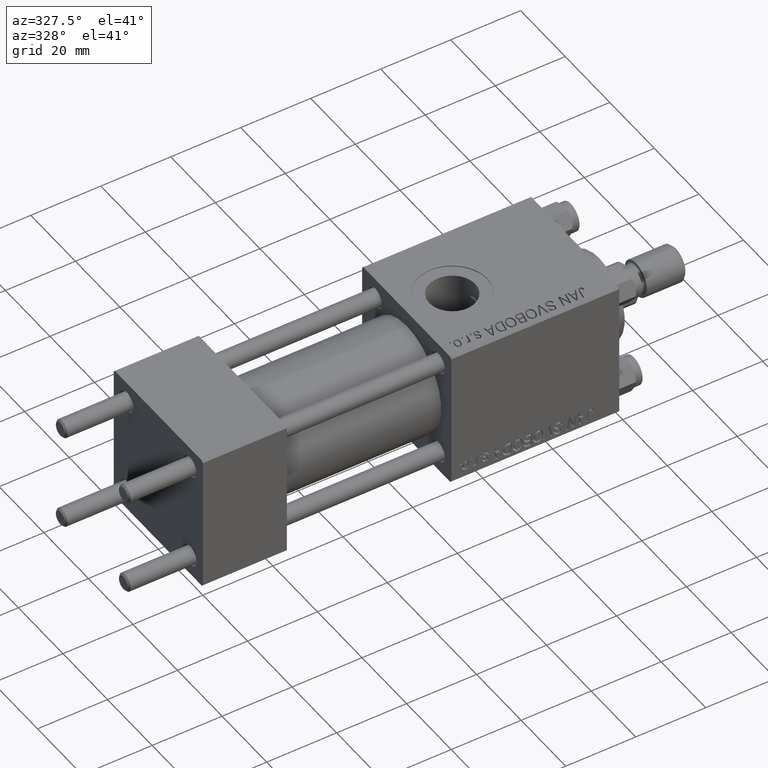
[diagram: clean part render]
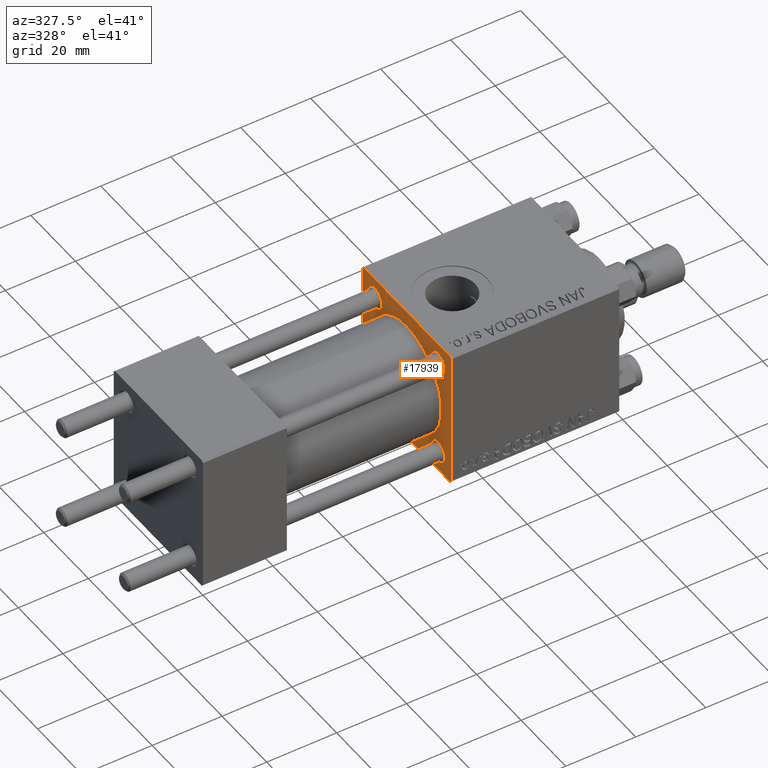
[diagram: same view with one face highlighted and labeled with its STEP entity id]
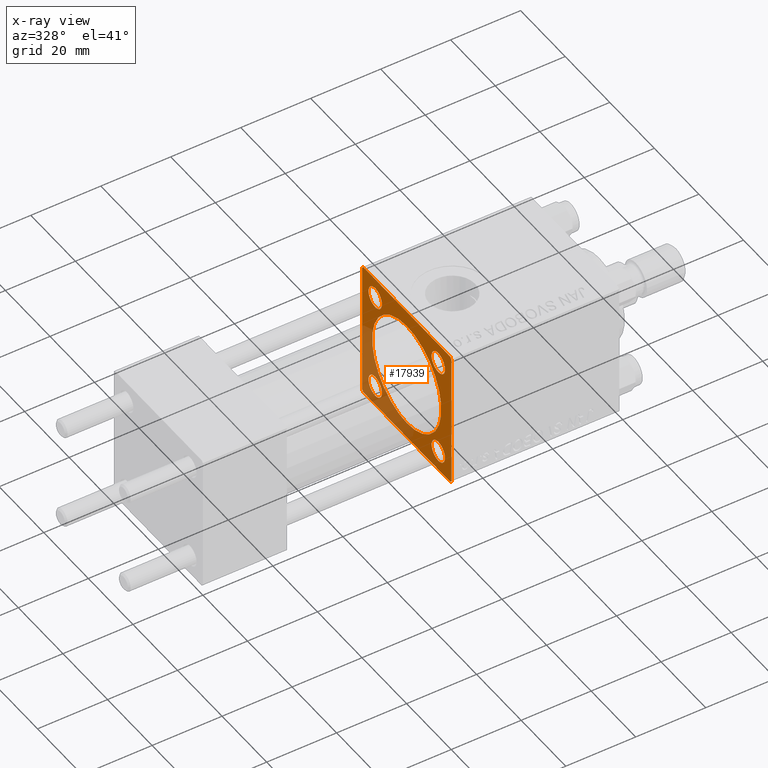
[diagram: x-ray of the same camera — body ghosted, the highlighted face saturated]
A machine part, auxiliary view. The second image highlights one B-rep face of the part: STEP entity #17939.
The next image is the same camera in x-ray: the body ghosted, the highlighted face saturated — about 28% of this face is hidden behind the body in this view.
In plain terms, the highlighted planar face has unit normal (-1, 0, 0).
Its self-contained STEP definition (entity closure, byte-faithful):
#129 = VERTEX_POINT ( 'NONE', #15052 ) ;
#166 = EDGE_CURVE ( 'NONE', #2318, #13542, #22949, .T. ) ;
#341 = CARTESIAN_POINT ( 'NONE',  ( 71.00000000000001421, -19.75000000000028066, -19.74999999999973355 ) ) ;
#757 = CARTESIAN_POINT ( 'NONE',  ( 71.00000000000001421, 0.000000000000000000, 0.000000000000000000 ) ) ;
#1073 = EDGE_CURVE ( 'NONE', #16565, #28310, #16279, .T. ) ;
#1435 = CARTESIAN_POINT ( 'NONE',  ( 71.00000000000001421, -14.15000000000000036, -11.15000000000002522 ) ) ;
#2318 = VERTEX_POINT ( 'NONE', #46580 ) ;
#2628 = CIRCLE ( 'NONE', #9951, 2.999999999999976463 ) ;
#2677 = ORIENTED_EDGE ( 'NONE', *, *, #17128, .T. ) ;
#3322 = AXIS2_PLACEMENT_3D ( 'NONE', #12556, #38813, #27613 ) ;
#3884 = EDGE_CURVE ( 'NONE', #26812, #12366, #47269, .T. ) ;
#4024 = CARTESIAN_POINT ( 'NONE',  ( 71.00000000000001421, -20.00000000000000355, 19.99999999999999645 ) ) ;
#4340 = DIRECTION ( 'NONE',  ( 0.000000000000000000, 0.000000000000000000, 1.000000000000000000 ) ) ;
#4429 = CIRCLE ( 'NONE', #23942, 2.999999999999976463 ) ;
#4444 = AXIS2_PLACEMENT_3D ( 'NONE', #16089, #31658, #12265 ) ;
#4796 = DIRECTION ( 'NONE',  ( 1.000000000000000000, 0.000000000000000000, 0.000000000000000000 ) ) ;
#4878 = EDGE_CURVE ( 'NONE', #2318, #6711, #42767, .T. ) ;
#5298 = DIRECTION ( 'NONE',  ( 0.000000000000000000, 0.000000000000000000, 1.000000000000000000 ) ) ;
#5326 = EDGE_CURVE ( 'NONE', #13655, #12682, #31072, .T. ) ;
#5335 = AXIS2_PLACEMENT_3D ( 'NONE', #33842, #49364, #6818 ) ;
#5569 = DIRECTION ( 'NONE',  ( -0.000000000000000000, -0.7071067811865474617, -0.7071067811865474617 ) ) ;
#5817 = CARTESIAN_POINT ( 'NONE',  ( 71.00000000000001421, 14.15000000000000036, 11.14999999999999858 ) ) ;
#6427 = ORIENTED_EDGE ( 'NONE', *, *, #24322, .T. ) ;
#6711 = VERTEX_POINT ( 'NONE', #20411 ) ;
#6818 = DIRECTION ( 'NONE',  ( 0.000000000000000000, 0.000000000000000000, 1.000000000000000000 ) ) ;
#6892 = EDGE_CURVE ( 'NONE', #12682, #13655, #2628, .T. ) ;
#7432 = VERTEX_POINT ( 'NONE', #44849 ) ;
#8239 = VECTOR ( 'NONE', #22906, 1000.000000000000000 ) ;
#8411 = DIRECTION ( 'NONE',  ( 1.000000000000000000, 0.000000000000000000, 0.000000000000000000 ) ) ;
#9009 = ORIENTED_EDGE ( 'NONE', *, *, #4878, .F. ) ;
#9019 = EDGE_CURVE ( 'NONE', #49017, #49293, #10715, .T. ) ;
#9041 = CARTESIAN_POINT ( 'NONE',  ( 71.00000000000001421, -14.15000000000000036, -14.15000000000000036 ) ) ;
#9073 = AXIS2_PLACEMENT_3D ( 'NONE', #9041, #13864, #29426 ) ;
#9951 = AXIS2_PLACEMENT_3D ( 'NONE', #40208, #4796, #5298 ) ;
#10270 = CARTESIAN_POINT ( 'NONE',  ( 71.00000000000001421, 1.898202538678397557E-15, -15.50000000000000000 ) ) ;
#10628 = LINE ( 'NONE', #33083, #12955 ) ;
#10715 = CIRCLE ( 'NONE', #45694, 3.000000000000004441 ) ;
#11426 = EDGE_LOOP ( 'NONE', ( #13606, #39799 ) ) ;
#11718 = CARTESIAN_POINT ( 'NONE',  ( 71.00000000000001421, 0.000000000000000000, 15.50000000000000000 ) ) ;
#11802 = CIRCLE ( 'NONE', #4444, 15.50000000000000000 ) ;
#12265 = DIRECTION ( 'NONE',  ( 0.000000000000000000, 0.000000000000000000, -1.000000000000000000 ) ) ;
#12366 = VERTEX_POINT ( 'NONE', #5817 ) ;
#12556 = CARTESIAN_POINT ( 'NONE',  ( 71.00000000000001421, -14.15000000000000036, 14.15000000000000036 ) ) ;
#12682 = VERTEX_POINT ( 'NONE', #31792 ) ;
#12708 = CARTESIAN_POINT ( 'NONE',  ( 71.00000000000001421, 19.99999999999999645, 19.49999999999998579 ) ) ;
#12955 = VECTOR ( 'NONE', #17779, 999.9999999999998863 ) ;
#13472 = DIRECTION ( 'NONE',  ( 0.000000000000000000, 0.000000000000000000, 1.000000000000000000 ) ) ;
#13542 = VERTEX_POINT ( 'NONE', #43742 ) ;
#13606 = ORIENTED_EDGE ( 'NONE', *, *, #9019, .T. ) ;
#13655 = VERTEX_POINT ( 'NONE', #1435 ) ;
#13805 = VECTOR ( 'NONE', #22706, 1000.000000000000114 ) ;
#13864 = DIRECTION ( 'NONE',  ( 1.000000000000000000, 0.000000000000000000, 0.000000000000000000 ) ) ;
#14134 = CARTESIAN_POINT ( 'NONE',  ( 71.00000000000001421, 14.15000000000000036, -11.15000000000002522 ) ) ;
#14648 = AXIS2_PLACEMENT_3D ( 'NONE', #757, #8411, #36187 ) ;
#15052 = CARTESIAN_POINT ( 'NONE',  ( 71.00000000000001421, 14.15000000000000036, -17.14999999999997726 ) ) ;
#16089 = CARTESIAN_POINT ( 'NONE',  ( 71.00000000000001421, 0.000000000000000000, 0.000000000000000000 ) ) ;
#16279 = CIRCLE ( 'NONE', #14648, 15.50000000000000000 ) ;
#16565 = VERTEX_POINT ( 'NONE', #11718 ) ;
#16729 = FACE_BOUND ( 'NONE', #37948, .T. ) ;
#17035 = ORIENTED_EDGE ( 'NONE', *, *, #49942, .T. ) ;
#17086 = DIRECTION ( 'NONE',  ( 0.000000000000000000, -1.000000000000000000, -8.673617379884035472E-17 ) ) ;
#17128 = EDGE_CURVE ( 'NONE', #28310, #16565, #11802, .T. ) ;
#17718 = DIRECTION ( 'NONE',  ( 0.000000000000000000, 0.000000000000000000, 1.000000000000000000 ) ) ;
#17779 = DIRECTION ( 'NONE',  ( 0.000000000000000000, 0.7071067811865574537, -0.7071067811865376918 ) ) ;
#17939 = ADVANCED_FACE ( 'NONE', ( #43730, #43972, #36343, #39911, #16729, #40908 ), #32283, .T. ) ;
#18795 = CIRCLE ( 'NONE', #3322, 3.000000000000004441 ) ;
#19898 = EDGE_LOOP ( 'NONE', ( #23755, #29986 ) ) ;
#20411 = CARTESIAN_POINT ( 'NONE',  ( 71.00000000000001421, -20.00000000000000000, -19.50000000000001066 ) ) ;
#20471 = DIRECTION ( 'NONE',  ( 0.000000000000000000, -0.7071067811865376918, 0.7071067811865574537 ) ) ;
#21148 = EDGE_CURVE ( 'NONE', #26568, #7432, #26579, .T. ) ;
#22496 = EDGE_CURVE ( 'NONE', #38799, #13542, #26021, .T. ) ;
#22706 = DIRECTION ( 'NONE',  ( -0.000000000000000000, 0.7071067811865573427, 0.7071067811865376918 ) ) ;
#22906 = DIRECTION ( 'NONE',  ( 0.000000000000000000, 8.673617379884036705E-17, -1.000000000000000000 ) ) ;
#22949 = LINE ( 'NONE', #46616, #13805 ) ;
#23238 = DIRECTION ( 'NONE',  ( 0.000000000000000000, -1.000000000000000000, 0.000000000000000000 ) ) ;
#23512 = ORIENTED_EDGE ( 'NONE', *, *, #26371, .T. ) ;
#23755 = ORIENTED_EDGE ( 'NONE', *, *, #5326, .T. ) ;
#23942 = AXIS2_PLACEMENT_3D ( 'NONE', #27797, #39247, #4340 ) ;
#23987 = EDGE_LOOP ( 'NONE', ( #32364, #6427 ) ) ;
#24199 = CARTESIAN_POINT ( 'NONE',  ( 71.00000000000001421, -14.15000000000000036, 17.15000000000000568 ) ) ;
#24322 = EDGE_CURVE ( 'NONE', #129, #37381, #4429, .T. ) ;
#24963 = LINE ( 'NONE', #37176, #34373 ) ;
#25600 = ORIENTED_EDGE ( 'NONE', *, *, #3884, .T. ) ;
#26021 = LINE ( 'NONE', #41541, #36126 ) ;
#26145 = ORIENTED_EDGE ( 'NONE', *, *, #22496, .F. ) ;
#26371 = EDGE_CURVE ( 'NONE', #7432, #6711, #30709, .T. ) ;
#26462 = CARTESIAN_POINT ( 'NONE',  ( 71.00000000000001421, 19.49999999999996803, 20.00000000000000000 ) ) ;
#26568 = VERTEX_POINT ( 'NONE', #33202 ) ;
#26579 = LINE ( 'NONE', #46157, #32105 ) ;
#26641 = VECTOR ( 'NONE', #40037, 1000.000000000000000 ) ;
#26812 = VERTEX_POINT ( 'NONE', #40519 ) ;
#26857 = EDGE_CURVE ( 'NONE', #12366, #26812, #32200, .T. ) ;
#27613 = DIRECTION ( 'NONE',  ( 0.000000000000000000, 0.000000000000000000, 1.000000000000000000 ) ) ;
#27659 = ORIENTED_EDGE ( 'NONE', *, *, #21148, .T. ) ;
#27797 = CARTESIAN_POINT ( 'NONE',  ( 71.00000000000001421, 14.15000000000000036, -14.15000000000000036 ) ) ;
#28310 = VERTEX_POINT ( 'NONE', #10270 ) ;
#28326 = CARTESIAN_POINT ( 'NONE',  ( 71.00000000000001421, 19.99999999999999645, 20.00000000000000000 ) ) ;
#29426 = DIRECTION ( 'NONE',  ( 0.000000000000000000, 0.000000000000000000, 1.000000000000000000 ) ) ;
#29986 = ORIENTED_EDGE ( 'NONE', *, *, #6892, .T. ) ;
#30709 = LINE ( 'NONE', #341, #40291 ) ;
#31072 = CIRCLE ( 'NONE', #9073, 2.999999999999976463 ) ;
#31145 = EDGE_CURVE ( 'NONE', #48031, #48080, #44354, .T. ) ;
#31246 = ORIENTED_EDGE ( 'NONE', *, *, #41131, .T. ) ;
#31658 = DIRECTION ( 'NONE',  ( 1.000000000000000000, 0.000000000000000000, 0.000000000000000000 ) ) ;
#31792 = CARTESIAN_POINT ( 'NONE',  ( 71.00000000000001421, -14.15000000000000036, -17.14999999999997726 ) ) ;
#31977 = CARTESIAN_POINT ( 'NONE',  ( 71.00000000000001421, -14.15000000000000036, 14.15000000000000036 ) ) ;
#32037 = CARTESIAN_POINT ( 'NONE',  ( 71.00000000000001421, 0.000000000000000000, 0.000000000000000000 ) ) ;
#32105 = VECTOR ( 'NONE', #23238, 1000.000000000000000 ) ;
#32200 = CIRCLE ( 'NONE', #5335, 3.000000000000000888 ) ;
#32283 = PLANE ( 'NONE',  #42756 ) ;
#32313 = EDGE_LOOP ( 'NONE', ( #25600, #35033 ) ) ;
#32364 = ORIENTED_EDGE ( 'NONE', *, *, #39089, .T. ) ;
#33083 = CARTESIAN_POINT ( 'NONE',  ( 71.00000000000001421, 19.74999999999971578, 19.75000000000026290 ) ) ;
#33116 = DIRECTION ( 'NONE',  ( 1.000000000000000000, 0.000000000000000000, 0.000000000000000000 ) ) ;
#33202 = CARTESIAN_POINT ( 'NONE',  ( 71.00000000000001421, 19.49999999999999645, -20.00000000000000000 ) ) ;
#33279 = CIRCLE ( 'NONE', #49530, 2.999999999999976463 ) ;
#33842 = CARTESIAN_POINT ( 'NONE',  ( 71.00000000000001421, 14.15000000000000036, 14.15000000000000036 ) ) ;
#34071 = EDGE_LOOP ( 'NONE', ( #27659, #23512, #9009, #49506, #26145, #31246, #35534, #17035 ) ) ;
#34373 = VECTOR ( 'NONE', #5569, 1000.000000000000114 ) ;
#34858 = CARTESIAN_POINT ( 'NONE',  ( 71.00000000000001421, -14.15000000000000036, 11.14999999999999858 ) ) ;
#35033 = ORIENTED_EDGE ( 'NONE', *, *, #26857, .T. ) ;
#35534 = ORIENTED_EDGE ( 'NONE', *, *, #31145, .T. ) ;
#36126 = VECTOR ( 'NONE', #17086, 1000.000000000000000 ) ;
#36187 = DIRECTION ( 'NONE',  ( 0.000000000000000000, 0.000000000000000000, -1.000000000000000000 ) ) ;
#36343 = FACE_BOUND ( 'NONE', #23987, .T. ) ;
#36837 = DIRECTION ( 'NONE',  ( -1.000000000000000000, 0.000000000000000000, -0.000000000000000000 ) ) ;
#36925 = CARTESIAN_POINT ( 'NONE',  ( 71.00000000000001421, 14.15000000000000036, 14.15000000000000036 ) ) ;
#37176 = CARTESIAN_POINT ( 'NONE',  ( 71.00000000000001421, 19.74999999999999645, -19.74999999999999645 ) ) ;
#37381 = VERTEX_POINT ( 'NONE', #14134 ) ;
#37527 = AXIS2_PLACEMENT_3D ( 'NONE', #36925, #33116, #13472 ) ;
#37948 = EDGE_LOOP ( 'NONE', ( #49515, #2677 ) ) ;
#38799 = VERTEX_POINT ( 'NONE', #26462 ) ;
#38813 = DIRECTION ( 'NONE',  ( 1.000000000000000000, 0.000000000000000000, 0.000000000000000000 ) ) ;
#39089 = EDGE_CURVE ( 'NONE', #37381, #129, #33279, .T. ) ;
#39247 = DIRECTION ( 'NONE',  ( 1.000000000000000000, 0.000000000000000000, 0.000000000000000000 ) ) ;
#39799 = ORIENTED_EDGE ( 'NONE', *, *, #44613, .T. ) ;
#39911 = FACE_BOUND ( 'NONE', #19898, .T. ) ;
#40037 = DIRECTION ( 'NONE',  ( 0.000000000000000000, 0.000000000000000000, -1.000000000000000000 ) ) ;
#40208 = CARTESIAN_POINT ( 'NONE',  ( 71.00000000000001421, -14.15000000000000036, -14.15000000000000036 ) ) ;
#40291 = VECTOR ( 'NONE', #20471, 999.9999999999998863 ) ;
#40519 = CARTESIAN_POINT ( 'NONE',  ( 71.00000000000001421, 14.15000000000000036, 17.15000000000000568 ) ) ;
#40908 = FACE_OUTER_BOUND ( 'NONE', #34071, .T. ) ;
#41131 = EDGE_CURVE ( 'NONE', #38799, #48031, #10628, .T. ) ;
#41541 = CARTESIAN_POINT ( 'NONE',  ( 71.00000000000001421, 19.99999999999999645, 20.00000000000000000 ) ) ;
#42590 = DIRECTION ( 'NONE',  ( 0.000000000000000000, 0.000000000000000000, 1.000000000000000000 ) ) ;
#42756 = AXIS2_PLACEMENT_3D ( 'NONE', #32037, #36837, #47801 ) ;
#42767 = LINE ( 'NONE', #4024, #8239 ) ;
#43730 = FACE_BOUND ( 'NONE', #11426, .T. ) ;
#43742 = CARTESIAN_POINT ( 'NONE',  ( 71.00000000000001421, -19.50000000000001776, 19.99999999999999645 ) ) ;
#43972 = FACE_BOUND ( 'NONE', #32313, .T. ) ;
#44354 = LINE ( 'NONE', #28326, #26641 ) ;
#44613 = EDGE_CURVE ( 'NONE', #49293, #49017, #18795, .T. ) ;
#44849 = CARTESIAN_POINT ( 'NONE',  ( 71.00000000000001421, -19.50000000000002487, -20.00000000000000000 ) ) ;
#44973 = DIRECTION ( 'NONE',  ( 1.000000000000000000, 0.000000000000000000, 0.000000000000000000 ) ) ;
#45694 = AXIS2_PLACEMENT_3D ( 'NONE', #31977, #47494, #42590 ) ;
#46157 = CARTESIAN_POINT ( 'NONE',  ( 71.00000000000001421, 19.99999999999999645, -20.00000000000000000 ) ) ;
#46580 = CARTESIAN_POINT ( 'NONE',  ( 71.00000000000001421, -20.00000000000000355, 19.50000000000002487 ) ) ;
#46616 = CARTESIAN_POINT ( 'NONE',  ( 71.00000000000001421, -19.74999999999973710, 19.75000000000028422 ) ) ;
#47269 = CIRCLE ( 'NONE', #37527, 3.000000000000000888 ) ;
#47494 = DIRECTION ( 'NONE',  ( 1.000000000000000000, 0.000000000000000000, 0.000000000000000000 ) ) ;
#47801 = DIRECTION ( 'NONE',  ( -0.000000000000000000, 0.000000000000000000, 1.000000000000000000 ) ) ;
#48031 = VERTEX_POINT ( 'NONE', #12708 ) ;
#48080 = VERTEX_POINT ( 'NONE', #49376 ) ;
#49017 = VERTEX_POINT ( 'NONE', #24199 ) ;
#49054 = CARTESIAN_POINT ( 'NONE',  ( 71.00000000000001421, 14.15000000000000036, -14.15000000000000036 ) ) ;
#49293 = VERTEX_POINT ( 'NONE', #34858 ) ;
#49364 = DIRECTION ( 'NONE',  ( 1.000000000000000000, 0.000000000000000000, 0.000000000000000000 ) ) ;
#49376 = CARTESIAN_POINT ( 'NONE',  ( 71.00000000000001421, 19.99999999999999645, -19.50000000000000000 ) ) ;
#49506 = ORIENTED_EDGE ( 'NONE', *, *, #166, .T. ) ;
#49515 = ORIENTED_EDGE ( 'NONE', *, *, #1073, .T. ) ;
#49530 = AXIS2_PLACEMENT_3D ( 'NONE', #49054, #44973, #17718 ) ;
#49942 = EDGE_CURVE ( 'NONE', #48080, #26568, #24963, .T. ) ;